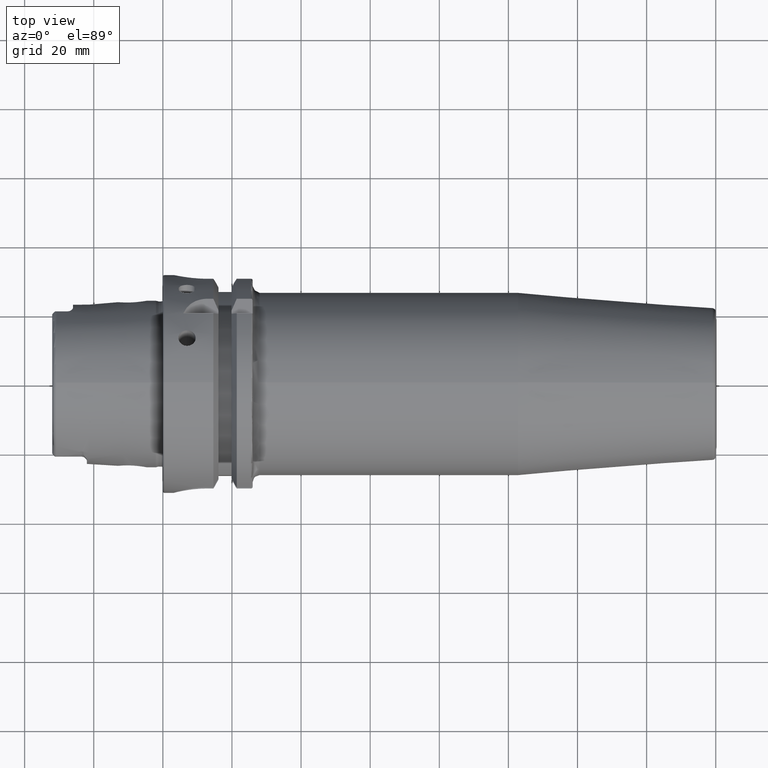
[diagram: clean part render]
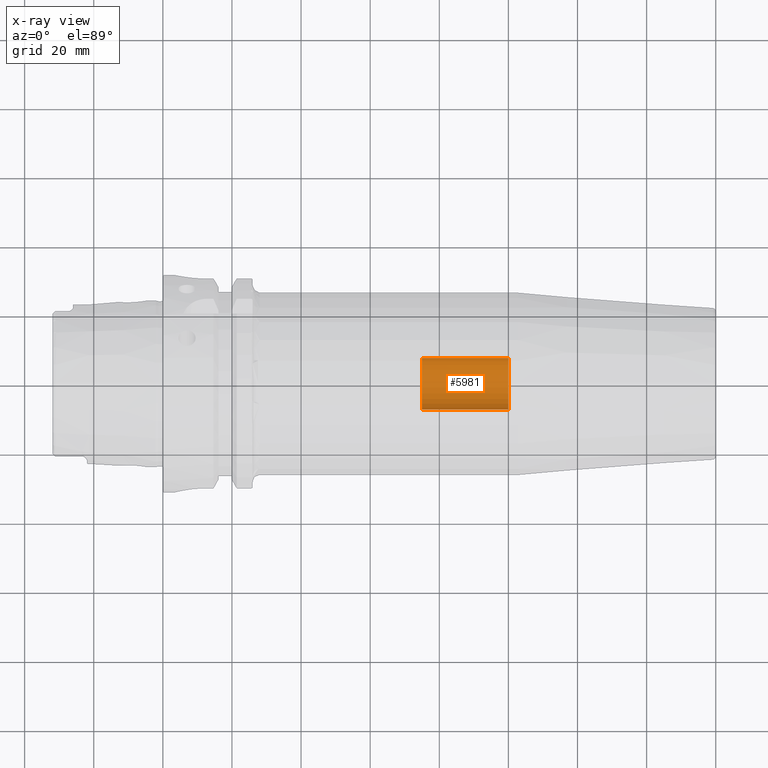
[diagram: x-ray — body ghosted, one internal face saturated and labeled with its STEP entity id]
A machine part, top view, then the same camera in x-ray: the body is ghosted and one INTERNAL B-rep face — a face not visible from any outside direction — is saturated and labeled: STEP entity #5981.
In plain terms, the highlighted cylindrical surface (edge-blend (fillet) strip) has radius 7.5 mm, axis along (1, 0, 0).
Its self-contained STEP definition (entity closure, byte-faithful):
#432=DIRECTION('',(1.E0,0.E0,0.E0));
#433=VECTOR('',#432,2.5E1);
#434=CARTESIAN_POINT('',(7.5E1,7.5E0,0.E0));
#435=LINE('',#434,#433);
#441=DIRECTION('',(1.E0,0.E0,0.E0));
#442=VECTOR('',#441,2.5E1);
#443=CARTESIAN_POINT('',(7.5E1,-7.5E0,0.E0));
#444=LINE('',#443,#442);
#445=CARTESIAN_POINT('',(1.E2,0.E0,0.E0));
#446=DIRECTION('',(1.E0,0.E0,0.E0));
#447=DIRECTION('',(0.E0,-1.E0,0.E0));
#448=AXIS2_PLACEMENT_3D('',#445,#446,#447);
#2542=CARTESIAN_POINT('',(7.5E1,0.E0,0.E0));
#2543=DIRECTION('',(1.E0,0.E0,0.E0));
#2544=DIRECTION('',(0.E0,-1.E0,0.E0));
#2545=AXIS2_PLACEMENT_3D('',#2542,#2543,#2544);
#3058=CARTESIAN_POINT('',(7.5E1,-7.5E0,0.E0));
#3059=CARTESIAN_POINT('',(7.5E1,7.5E0,0.E0));
#3060=VERTEX_POINT('',#3058);
#3061=VERTEX_POINT('',#3059);
#3062=CARTESIAN_POINT('',(1.E2,-7.5E0,0.E0));
#3063=CARTESIAN_POINT('',(1.E2,7.5E0,0.E0));
#3064=VERTEX_POINT('',#3062);
#3065=VERTEX_POINT('',#3063);
#5970=CARTESIAN_POINT('',(6.901822262516E1,0.E0,0.E0));
#5971=DIRECTION('',(1.E0,0.E0,0.E0));
#5972=DIRECTION('',(0.E0,-1.E0,0.E0));
#5973=AXIS2_PLACEMENT_3D('',#5970,#5971,#5972);
#5974=CYLINDRICAL_SURFACE('',#5973,7.5E0);
#5975=ORIENTED_EDGE('',*,*,#3522,.F.);
#5976=ORIENTED_EDGE('',*,*,#3506,.F.);
#5977=ORIENTED_EDGE('',*,*,#3463,.T.);
#5978=ORIENTED_EDGE('',*,*,#3503,.T.);
#5979=EDGE_LOOP('',(#5975,#5976,#5977,#5978));
#5980=FACE_OUTER_BOUND('',#5979,.F.);
#5981=ADVANCED_FACE('',(#5980),#5974,.F.);
#449=CIRCLE('',#448,7.5E0);
#2546=CIRCLE('',#2545,7.5E0);
#3463=EDGE_CURVE('',#3060,#3061,#2546,.T.);
#3503=EDGE_CURVE('',#3061,#3065,#435,.T.);
#3506=EDGE_CURVE('',#3060,#3064,#444,.T.);
#3522=EDGE_CURVE('',#3064,#3065,#449,.T.);